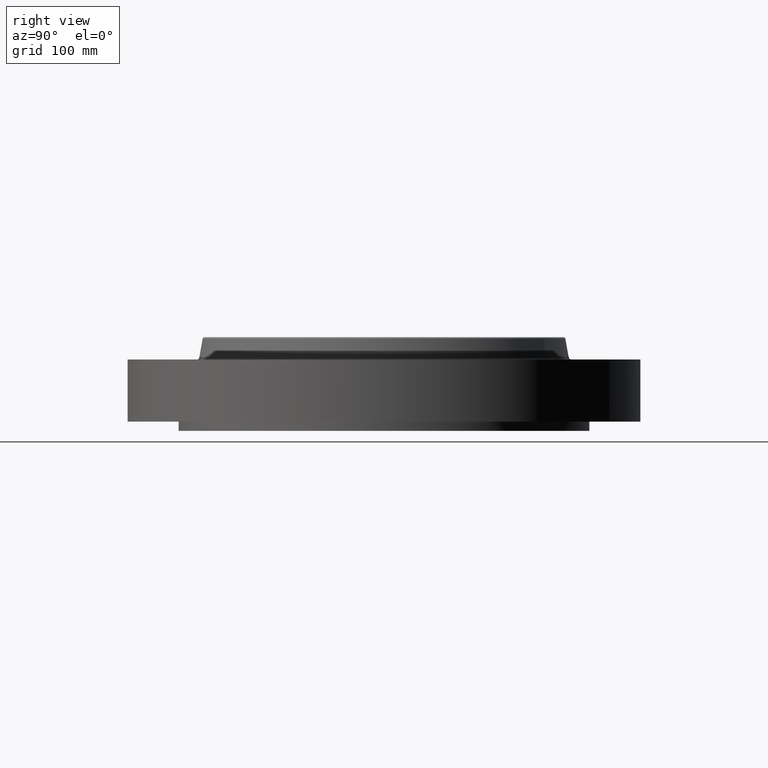
[diagram: clean part render]
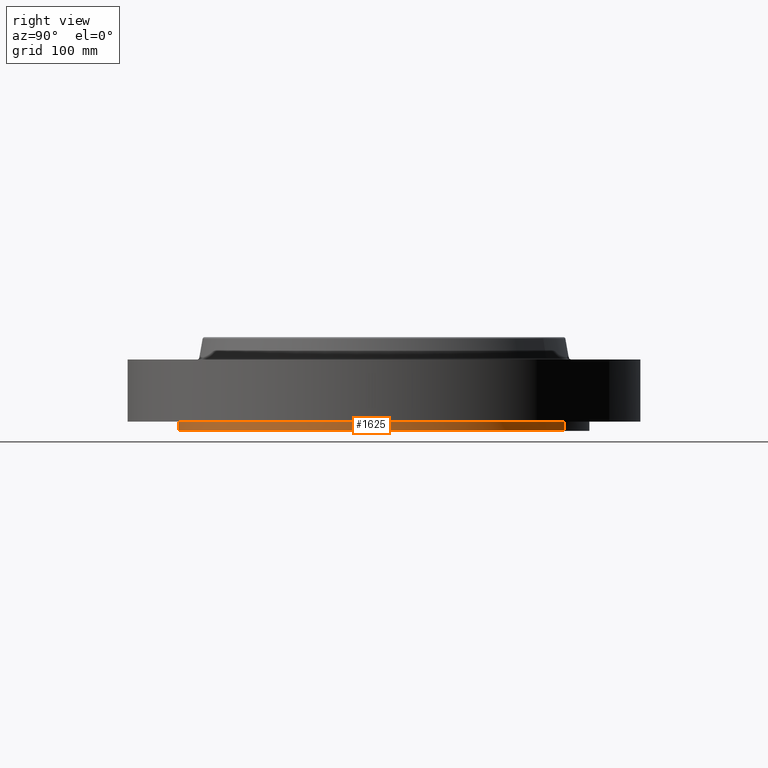
[diagram: same view with one face highlighted and labeled with its STEP entity id]
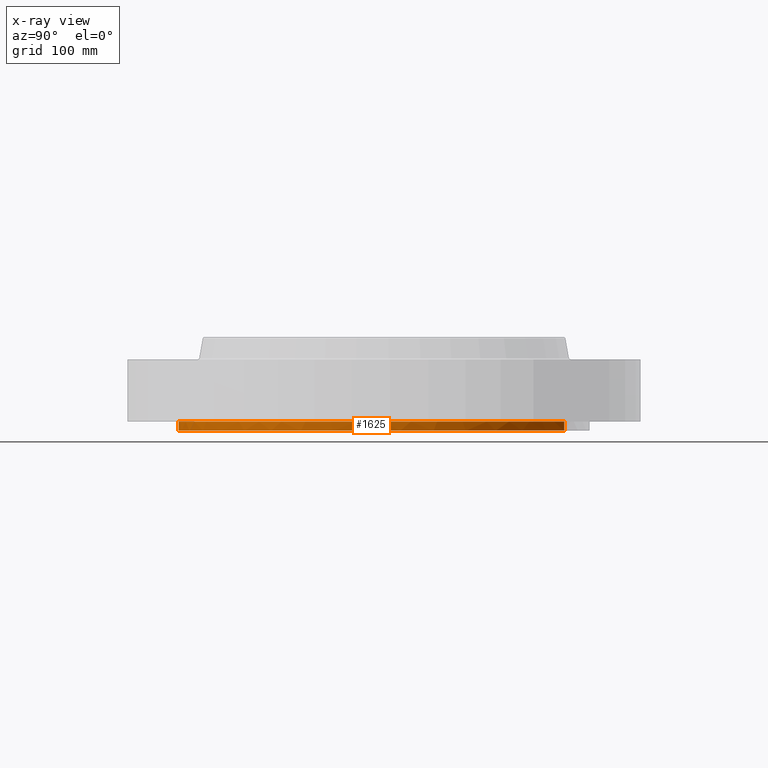
[diagram: x-ray of the same camera — body ghosted, the highlighted face saturated]
A machine part, right view. The second image highlights one B-rep face of the part: STEP entity #1625.
The next image is the same camera in x-ray: the body ghosted, the highlighted face saturated — about 0% of this face is hidden behind the body in this view.
In plain terms, the highlighted cylindrical surface (partial cylindrical patch) has radius 177.8 mm, axis along (0, 0, -1).
Its self-contained STEP definition (entity closure, byte-faithful):
#379=AXIS2_PLACEMENT_3D('Circle Axis2P3D',#377,#378,$) ;
#1414=AXIS2_PLACEMENT_3D('Circle Axis2P3D',#1412,#1413,$) ;
#1489=AXIS2_PLACEMENT_3D('Circle Axis2P3D',#1487,#1488,$) ;
#1494=AXIS2_PLACEMENT_3D('Circle Axis2P3D',#1492,#1493,$) ;
#1499=AXIS2_PLACEMENT_3D('Circle Axis2P3D',#1497,#1498,$) ;
#1504=AXIS2_PLACEMENT_3D('Circle Axis2P3D',#1502,#1503,$) ;
#1509=AXIS2_PLACEMENT_3D('Circle Axis2P3D',#1507,#1508,$) ;
#1514=AXIS2_PLACEMENT_3D('Circle Axis2P3D',#1512,#1513,$) ;
#1519=AXIS2_PLACEMENT_3D('Circle Axis2P3D',#1517,#1518,$) ;
#1524=AXIS2_PLACEMENT_3D('Circle Axis2P3D',#1522,#1523,$) ;
#1599=AXIS2_PLACEMENT_3D('Cylinder Axis2P3D',#1596,#1597,#1598) ;
#377=CARTESIAN_POINT('Axis2P3D Location',(0.,0.,-0.313000000001)) ;
#381=CARTESIAN_POINT('Vertex',(3.35597877024,6.14307793326,-0.313000000001)) ;
#383=CARTESIAN_POINT('Vertex',(-3.35597877024,-6.14307793326,-0.313000000001)) ;
#432=CARTESIAN_POINT('Vertex',(4.94974746833,4.94974746833,0.)) ;
#497=CARTESIAN_POINT('Vertex',(4.94974746833,-4.94974746833,0.)) ;
#627=CARTESIAN_POINT('Vertex',(6.4671567276,-2.67878402657,0.)) ;
#692=CARTESIAN_POINT('Vertex',(-2.67878402657,-6.4671567276,0.)) ;
#757=CARTESIAN_POINT('Vertex',(7.00000000003,1.1189649382E-015,0.)) ;
#887=CARTESIAN_POINT('Vertex',(6.4671567276,2.67878402657,0.)) ;
#1212=CARTESIAN_POINT('Vertex',(2.67878402657,-6.4671567276,0.)) ;
#1342=CARTESIAN_POINT('Vertex',(1.14402491806E-015,-7.00000000003,0.)) ;
#1412=CARTESIAN_POINT('Axis2P3D Location',(0.,0.,0.)) ;
#1416=CARTESIAN_POINT('Vertex',(3.35597877024,6.14307793326,8.39223703654E-016)) ;
#1484=CARTESIAN_POINT('Vertex',(-3.35597877024,-6.14307793326,8.39223703654E-016)) ;
#1487=CARTESIAN_POINT('Axis2P3D Location',(0.,0.,0.)) ;
#1492=CARTESIAN_POINT('Axis2P3D Location',(0.,0.,0.)) ;
#1497=CARTESIAN_POINT('Axis2P3D Location',(0.,0.,0.)) ;
#1502=CARTESIAN_POINT('Axis2P3D Location',(0.,0.,0.)) ;
#1507=CARTESIAN_POINT('Axis2P3D Location',(0.,0.,0.)) ;
#1512=CARTESIAN_POINT('Axis2P3D Location',(0.,0.,0.)) ;
#1517=CARTESIAN_POINT('Axis2P3D Location',(0.,0.,0.)) ;
#1522=CARTESIAN_POINT('Axis2P3D Location',(0.,0.,0.)) ;
#1596=CARTESIAN_POINT('Axis2P3D Location',(0.,0.,1.28350000001)) ;
#1601=CARTESIAN_POINT('Line Origine',(3.35597877024,6.14307793326,-0.156500000001)) ;
#1606=CARTESIAN_POINT('Line Origine',(-3.35597877024,-6.14307793326,-0.156500000001)) ;
#378=DIRECTION('Axis2P3D Direction',(0.,0.,-0.0393700787402)) ;
#1413=DIRECTION('Axis2P3D Direction',(0.,0.,-0.0393700787402)) ;
#1488=DIRECTION('Axis2P3D Direction',(0.,0.,-0.0393700787402)) ;
#1493=DIRECTION('Axis2P3D Direction',(0.,0.,-0.0393700787402)) ;
#1498=DIRECTION('Axis2P3D Direction',(0.,0.,-0.0393700787402)) ;
#1503=DIRECTION('Axis2P3D Direction',(0.,0.,-0.0393700787402)) ;
#1508=DIRECTION('Axis2P3D Direction',(0.,0.,-0.0393700787402)) ;
#1513=DIRECTION('Axis2P3D Direction',(0.,0.,-0.0393700787402)) ;
#1518=DIRECTION('Axis2P3D Direction',(0.,0.,-0.0393700787402)) ;
#1523=DIRECTION('Axis2P3D Direction',(0.,0.,-0.0393700787402)) ;
#1597=DIRECTION('Axis2P3D Direction',(0.,0.,-0.0393700787402)) ;
#1598=DIRECTION('Axis2P3D XDirection',(-0.0188750212049,-0.0345504945626,0.)) ;
#1602=DIRECTION('Vector Direction',(0.,0.,-0.0393700787402)) ;
#1607=DIRECTION('Vector Direction',(0.,0.,-0.0393700787402)) ;
#1603=VECTOR('Line Direction',#1602,0.0393700787402) ;
#1608=VECTOR('Line Direction',#1607,0.0393700787402) ;
#1612=ORIENTED_EDGE('',*,*,#385,.F.) ;
#1613=ORIENTED_EDGE('',*,*,#1605,.T.) ;
#1614=ORIENTED_EDGE('',*,*,#1418,.T.) ;
#1615=ORIENTED_EDGE('',*,*,#1526,.T.) ;
#1616=ORIENTED_EDGE('',*,*,#1521,.T.) ;
#1617=ORIENTED_EDGE('',*,*,#1516,.T.) ;
#1618=ORIENTED_EDGE('',*,*,#1511,.T.) ;
#1619=ORIENTED_EDGE('',*,*,#1506,.T.) ;
#1620=ORIENTED_EDGE('',*,*,#1501,.T.) ;
#1621=ORIENTED_EDGE('',*,*,#1496,.T.) ;
#1622=ORIENTED_EDGE('',*,*,#1491,.T.) ;
#1623=ORIENTED_EDGE('',*,*,#1610,.F.) ;
#1625=ADVANCED_FACE('PartBody',(#1624),#1600,.T.) ;
#380=CIRCLE('generated circle',#379,7.00000000003) ;
#1415=CIRCLE('generated circle',#1414,7.00000000003) ;
#1490=CIRCLE('generated circle',#1489,7.00000000003) ;
#1495=CIRCLE('generated circle',#1494,7.00000000003) ;
#1500=CIRCLE('generated circle',#1499,7.00000000003) ;
#1505=CIRCLE('generated circle',#1504,7.00000000003) ;
#1510=CIRCLE('generated circle',#1509,7.00000000003) ;
#1515=CIRCLE('generated circle',#1514,7.00000000003) ;
#1520=CIRCLE('generated circle',#1519,7.00000000003) ;
#1525=CIRCLE('generated circle',#1524,7.00000000003) ;
#1600=CYLINDRICAL_SURFACE('generated cylinder',#1599,7.00000000003) ;
#385=EDGE_CURVE('',#382,#384,#380,.T.) ;
#1418=EDGE_CURVE('',#1417,#433,#1415,.T.) ;
#1491=EDGE_CURVE('',#693,#1485,#1490,.T.) ;
#1496=EDGE_CURVE('',#1343,#693,#1495,.T.) ;
#1501=EDGE_CURVE('',#1213,#1343,#1500,.T.) ;
#1506=EDGE_CURVE('',#498,#1213,#1505,.T.) ;
#1511=EDGE_CURVE('',#628,#498,#1510,.T.) ;
#1516=EDGE_CURVE('',#758,#628,#1515,.T.) ;
#1521=EDGE_CURVE('',#888,#758,#1520,.T.) ;
#1526=EDGE_CURVE('',#433,#888,#1525,.T.) ;
#1605=EDGE_CURVE('',#382,#1417,#1604,.F.) ;
#1610=EDGE_CURVE('',#384,#1485,#1609,.F.) ;
#1611=EDGE_LOOP('',(#1612,#1613,#1614,#1615,#1616,#1617,#1618,#1619,#1620,#1621,#1622,#1623)) ;
#1624=FACE_OUTER_BOUND('',#1611,.T.) ;
#1604=LINE('Line',#1601,#1603) ;
#1609=LINE('Line',#1606,#1608) ;
#382=VERTEX_POINT('',#381) ;
#384=VERTEX_POINT('',#383) ;
#433=VERTEX_POINT('',#432) ;
#498=VERTEX_POINT('',#497) ;
#628=VERTEX_POINT('',#627) ;
#693=VERTEX_POINT('',#692) ;
#758=VERTEX_POINT('',#757) ;
#888=VERTEX_POINT('',#887) ;
#1213=VERTEX_POINT('',#1212) ;
#1343=VERTEX_POINT('',#1342) ;
#1417=VERTEX_POINT('',#1416) ;
#1485=VERTEX_POINT('',#1484) ;